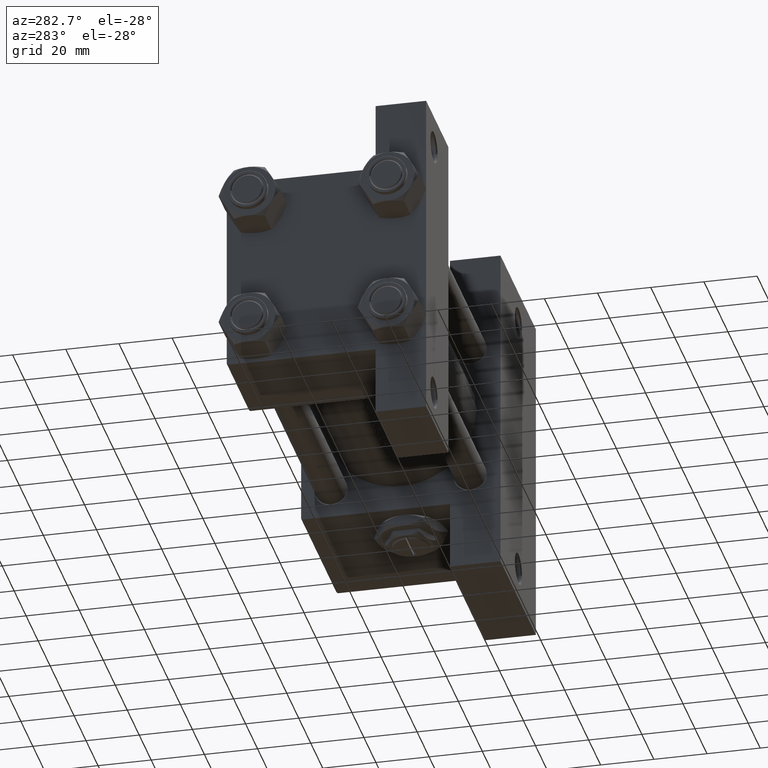
[diagram: clean part render]
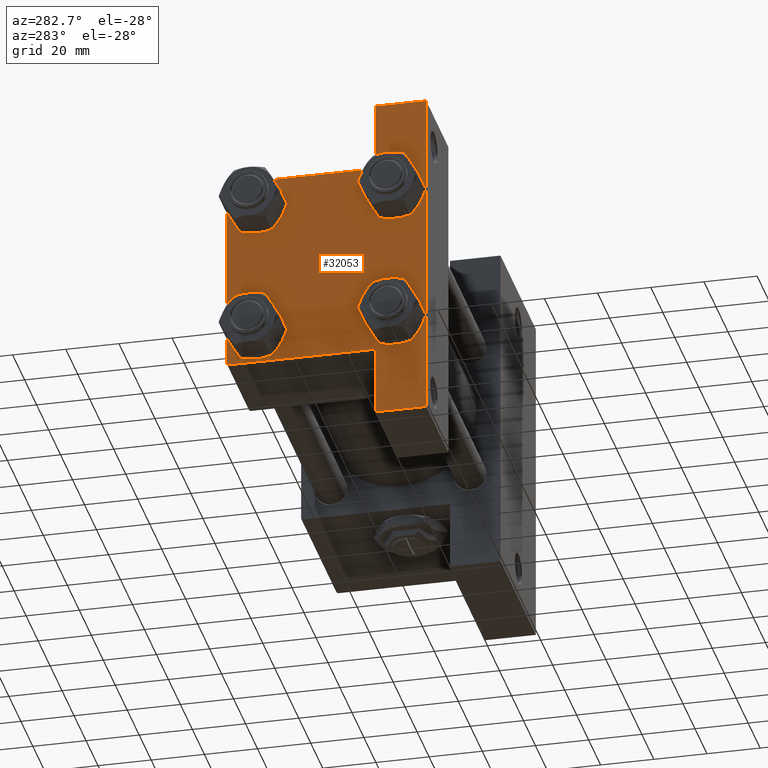
[diagram: same view with one face highlighted and labeled with its STEP entity id]
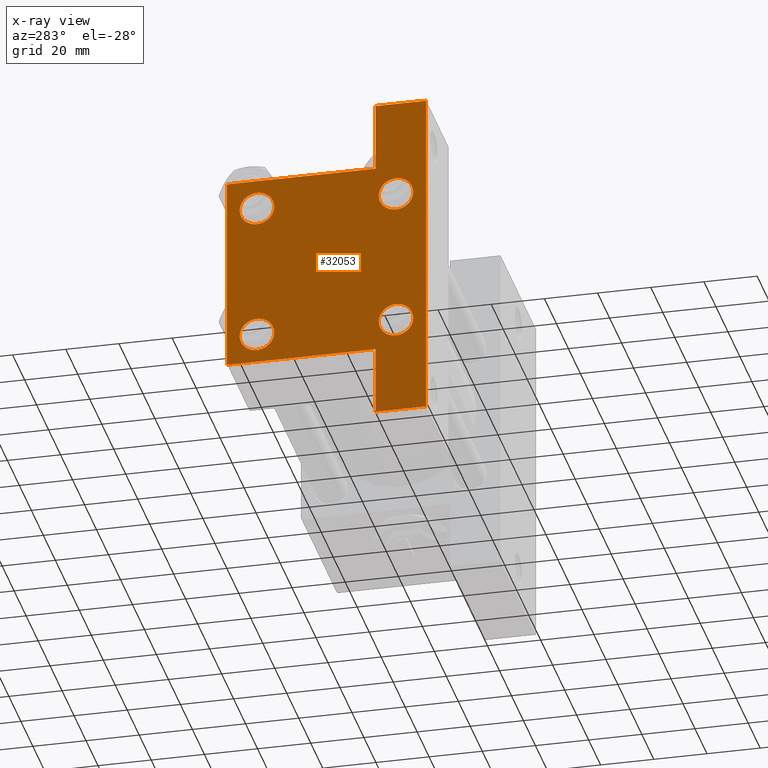
[diagram: x-ray of the same camera — body ghosted, the highlighted face saturated]
A machine part, auxiliary view. The second image highlights one B-rep face of the part: STEP entity #32053.
The next image is the same camera in x-ray: the body ghosted, the highlighted face saturated — about 0% of this face is hidden behind the body in this view.
In plain terms, the highlighted planar face has unit normal (-1, 0, -0).
Its self-contained STEP definition (entity closure, byte-faithful):
#152 = ORIENTED_EDGE ( 'NONE', *, *, #38609, .T. ) ;
#389 = CARTESIAN_POINT ( 'NONE',  ( 0.000000000000000000, -26.14999999999999147, -26.15000000000000924 ) ) ;
#640 = ORIENTED_EDGE ( 'NONE', *, *, #7896, .T. ) ;
#665 = CARTESIAN_POINT ( 'NONE',  ( 0.000000000000000000, 26.14999999999999858, -26.15000000000000213 ) ) ;
#1429 = FACE_BOUND ( 'NONE', #14296, .T. ) ;
#1511 = AXIS2_PLACEMENT_3D ( 'NONE', #16820, #20315, #11653 ) ;
#1976 = EDGE_CURVE ( 'NONE', #10417, #2445, #30505, .T. ) ;
#2445 = VERTEX_POINT ( 'NONE', #30836 ) ;
#2586 = AXIS2_PLACEMENT_3D ( 'NONE', #11253, #8266, #4272 ) ;
#2814 = VECTOR ( 'NONE', #40240, 1000.000000000000000 ) ;
#3331 = EDGE_CURVE ( 'NONE', #4947, #10025, #24158, .T. ) ;
#3492 = EDGE_CURVE ( 'NONE', #41437, #13388, #21844, .T. ) ;
#3693 = CARTESIAN_POINT ( 'NONE',  ( 0.000000000000000000, 26.14999999999999858, 26.15000000000000213 ) ) ;
#4171 = AXIS2_PLACEMENT_3D ( 'NONE', #13157, #5670, #35527 ) ;
#4272 = DIRECTION ( 'NONE',  ( 0.000000000000000000, 0.000000000000000000, 1.000000000000000000 ) ) ;
#4885 = DIRECTION ( 'NONE',  ( 0.000000000000000000, 0.000000000000000000, 1.000000000000000000 ) ) ;
#4947 = VERTEX_POINT ( 'NONE', #31139 ) ;
#5594 = EDGE_CURVE ( 'NONE', #12047, #40768, #19849, .T. ) ;
#5670 = DIRECTION ( 'NONE',  ( 1.000000000000000000, -0.000000000000000000, 0.000000000000000000 ) ) ;
#5702 = VERTEX_POINT ( 'NONE', #13354 ) ;
#5777 = CIRCLE ( 'NONE', #4171, 6.500000000000015987 ) ;
#5914 = FACE_BOUND ( 'NONE', #28785, .T. ) ;
#5968 = EDGE_CURVE ( 'NONE', #25910, #16077, #35525, .T. ) ;
#6085 = EDGE_CURVE ( 'NONE', #5702, #14455, #14128, .T. ) ;
#6280 = LINE ( 'NONE', #40123, #41993 ) ;
#6572 = CIRCLE ( 'NONE', #2586, 6.500000000000023093 ) ;
#6742 = ORIENTED_EDGE ( 'NONE', *, *, #45537, .T. ) ;
#6899 = DIRECTION ( 'NONE',  ( -2.877097866686192789E-16, -1.000000000000000000, 0.000000000000000000 ) ) ;
#7429 = VECTOR ( 'NONE', #20909, 1000.000000000000000 ) ;
#7896 = EDGE_CURVE ( 'NONE', #41928, #19851, #47347, .T. ) ;
#8266 = DIRECTION ( 'NONE',  ( 1.000000000000000000, -0.000000000000000000, 0.000000000000000000 ) ) ;
#8346 = LINE ( 'NONE', #12071, #27017 ) ;
#9648 = EDGE_CURVE ( 'NONE', #23510, #14455, #16316, .T. ) ;
#10024 = ORIENTED_EDGE ( 'NONE', *, *, #29486, .T. ) ;
#10025 = VERTEX_POINT ( 'NONE', #26220 ) ;
#10417 = VERTEX_POINT ( 'NONE', #22424 ) ;
#11253 = CARTESIAN_POINT ( 'NONE',  ( 0.000000000000000000, 26.14999999999999858, 26.15000000000000213 ) ) ;
#11653 = DIRECTION ( 'NONE',  ( 0.000000000000000000, 0.000000000000000000, 1.000000000000000000 ) ) ;
#12047 = VERTEX_POINT ( 'NONE', #21230 ) ;
#12071 = CARTESIAN_POINT ( 'NONE',  ( -0.000000000000000000, -37.25000000000000000, 37.25000000000000000 ) ) ;
#12369 = DIRECTION ( 'NONE',  ( 1.000000000000000000, -0.000000000000000000, 0.000000000000000000 ) ) ;
#12451 = CARTESIAN_POINT ( 'NONE',  ( 0.000000000000000000, -37.50000000000000711, 37.49999999999999289 ) ) ;
#12702 = ORIENTED_EDGE ( 'NONE', *, *, #6085, .F. ) ;
#12884 = FACE_BOUND ( 'NONE', #23228, .T. ) ;
#12927 = AXIS2_PLACEMENT_3D ( 'NONE', #22391, #25645, #45038 ) ;
#13099 = CARTESIAN_POINT ( 'NONE',  ( 3.977209754999744250E-16, -63.49999999999998579, -18.50000000000000355 ) ) ;
#13157 = CARTESIAN_POINT ( 'NONE',  ( 0.000000000000000000, -26.14999999999999147, -26.15000000000000924 ) ) ;
#13354 = CARTESIAN_POINT ( 'NONE',  ( 3.977209754999747208E-16, -63.50000000000000000, -18.50000000000000355 ) ) ;
#13388 = VERTEX_POINT ( 'NONE', #22034 ) ;
#13429 = CARTESIAN_POINT ( 'NONE',  ( 0.000000000000000000, 37.49999999999999289, 37.50000000000000000 ) ) ;
#14128 = LINE ( 'NONE', #25090, #2814 ) ;
#14254 = DIRECTION ( 'NONE',  ( 0.000000000000000000, 0.000000000000000000, -1.000000000000000000 ) ) ;
#14296 = EDGE_LOOP ( 'NONE', ( #49122, #640 ) ) ;
#14312 = ORIENTED_EDGE ( 'NONE', *, *, #1976, .T. ) ;
#14455 = VERTEX_POINT ( 'NONE', #43917 ) ;
#14705 = ORIENTED_EDGE ( 'NONE', *, *, #3331, .F. ) ;
#14867 = EDGE_CURVE ( 'NONE', #12047, #24763, #47531, .T. ) ;
#15026 = CIRCLE ( 'NONE', #1511, 6.500000000000023093 ) ;
#16077 = VERTEX_POINT ( 'NONE', #38256 ) ;
#16316 = LINE ( 'NONE', #24008, #36239 ) ;
#16332 = DIRECTION ( 'NONE',  ( 0.000000000000000000, 0.000000000000000000, 1.000000000000000000 ) ) ;
#16440 = EDGE_CURVE ( 'NONE', #41062, #25008, #45229, .T. ) ;
#16680 = CARTESIAN_POINT ( 'NONE',  ( 1.595073532467135441E-14, 63.50000000000001421, 26.72167621838005047 ) ) ;
#16820 = CARTESIAN_POINT ( 'NONE',  ( 0.000000000000000000, -26.14999999999999147, 26.15000000000000924 ) ) ;
#16927 = AXIS2_PLACEMENT_3D ( 'NONE', #28078, #20617, #17634 ) ;
#17634 = DIRECTION ( 'NONE',  ( -0.000000000000000000, 0.000000000000000000, 1.000000000000000000 ) ) ;
#18746 = CARTESIAN_POINT ( 'NONE',  ( 0.000000000000000000, 26.14999999999999858, -19.64999999999998792 ) ) ;
#18786 = EDGE_CURVE ( 'NONE', #40768, #16077, #6280, .T. ) ;
#19849 = LINE ( 'NONE', #43457, #32977 ) ;
#19851 = VERTEX_POINT ( 'NONE', #18746 ) ;
#20252 = ORIENTED_EDGE ( 'NONE', *, *, #16440, .T. ) ;
#20292 = EDGE_CURVE ( 'NONE', #2445, #10417, #15026, .T. ) ;
#20315 = DIRECTION ( 'NONE',  ( 1.000000000000000000, -0.000000000000000000, 0.000000000000000000 ) ) ;
#20617 = DIRECTION ( 'NONE',  ( -1.000000000000000000, 0.000000000000000000, -0.000000000000000000 ) ) ;
#20909 = DIRECTION ( 'NONE',  ( 0.000000000000000000, -1.734723475976806848E-16, -1.000000000000000000 ) ) ;
#21230 = CARTESIAN_POINT ( 'NONE',  ( 0.000000000000000000, 36.99999999999999289, 37.50000000000000000 ) ) ;
#21490 = CARTESIAN_POINT ( 'NONE',  ( 1.595073532467135441E-14, 63.50000000000000000, -37.50000000000002132 ) ) ;
#21844 = CIRCLE ( 'NONE', #42447, 6.500000000000023093 ) ;
#22034 = CARTESIAN_POINT ( 'NONE',  ( 0.000000000000000000, 26.14999999999999858, 19.64999999999998437 ) ) ;
#22054 = ORIENTED_EDGE ( 'NONE', *, *, #5594, .T. ) ;
#22391 = CARTESIAN_POINT ( 'NONE',  ( 0.000000000000000000, 26.14999999999999858, -26.15000000000000213 ) ) ;
#22424 = CARTESIAN_POINT ( 'NONE',  ( 0.000000000000000000, -26.14999999999999147, 32.65000000000003411 ) ) ;
#23228 = EDGE_LOOP ( 'NONE', ( #43139, #6742 ) ) ;
#23510 = VERTEX_POINT ( 'NONE', #21490 ) ;
#23779 = AXIS2_PLACEMENT_3D ( 'NONE', #389, #42672, #16332 ) ;
#24008 = CARTESIAN_POINT ( 'NONE',  ( 0.000000000000000000, 37.49999999999999289, -37.50000000000000000 ) ) ;
#24158 = LINE ( 'NONE', #12451, #24963 ) ;
#24234 = DIRECTION ( 'NONE',  ( 1.000000000000000000, -0.000000000000000000, 0.000000000000000000 ) ) ;
#24763 = VERTEX_POINT ( 'NONE', #42274 ) ;
#24835 = FACE_BOUND ( 'NONE', #48883, .T. ) ;
#24871 = ORIENTED_EDGE ( 'NONE', *, *, #9648, .T. ) ;
#24963 = VECTOR ( 'NONE', #39306, 1000.000000000000000 ) ;
#24969 = CARTESIAN_POINT ( 'NONE',  ( 0.000000000000000000, -26.14999999999999147, 26.15000000000000924 ) ) ;
#25008 = VERTEX_POINT ( 'NONE', #38975 ) ;
#25090 = CARTESIAN_POINT ( 'NONE',  ( 3.977209754999747208E-16, -63.49999999999998579, 26.72167621838007889 ) ) ;
#25245 = ORIENTED_EDGE ( 'NONE', *, *, #46784, .T. ) ;
#25645 = DIRECTION ( 'NONE',  ( 1.000000000000000000, -0.000000000000000000, 0.000000000000000000 ) ) ;
#25886 = AXIS2_PLACEMENT_3D ( 'NONE', #665, #12369, #4885 ) ;
#25910 = VERTEX_POINT ( 'NONE', #48841 ) ;
#26220 = CARTESIAN_POINT ( 'NONE',  ( -7.145701223179004046E-16, -37.50000000000000711, -18.50000000000000355 ) ) ;
#26529 = AXIS2_PLACEMENT_3D ( 'NONE', #24969, #24234, #40122 ) ;
#27017 = VECTOR ( 'NONE', #30262, 1000.000000000000114 ) ;
#27688 = VECTOR ( 'NONE', #40031, 1000.000000000000000 ) ;
#27748 = ORIENTED_EDGE ( 'NONE', *, *, #18786, .T. ) ;
#28078 = CARTESIAN_POINT ( 'NONE',  ( 0.000000000000000000, 0.000000000000000000, 0.000000000000000000 ) ) ;
#28376 = LINE ( 'NONE', #16680, #7429 ) ;
#28419 = ORIENTED_EDGE ( 'NONE', *, *, #14867, .F. ) ;
#28468 = CARTESIAN_POINT ( 'NONE',  ( 0.000000000000000000, 37.49999999999999289, 37.00000000000000000 ) ) ;
#28785 = EDGE_LOOP ( 'NONE', ( #20252, #10024 ) ) ;
#29299 = EDGE_CURVE ( 'NONE', #19851, #41928, #47110, .T. ) ;
#29486 = EDGE_CURVE ( 'NONE', #25008, #41062, #5777, .T. ) ;
#29811 = EDGE_CURVE ( 'NONE', #10025, #5702, #42449, .T. ) ;
#30262 = DIRECTION ( 'NONE',  ( -0.000000000000000000, 0.7071067811865474617, 0.7071067811865474617 ) ) ;
#30505 = CIRCLE ( 'NONE', #26529, 6.500000000000023093 ) ;
#30836 = CARTESIAN_POINT ( 'NONE',  ( 0.000000000000000000, -26.14999999999999147, 19.64999999999999147 ) ) ;
#31139 = CARTESIAN_POINT ( 'NONE',  ( 0.000000000000000000, -37.50000000000000711, 36.99999999999999289 ) ) ;
#31419 = VECTOR ( 'NONE', #6899, 1000.000000000000000 ) ;
#31759 = DIRECTION ( 'NONE',  ( 0.000000000000000000, 0.7071067811865474617, -0.7071067811865474617 ) ) ;
#32053 = ADVANCED_FACE ( 'NONE', ( #24835, #5914, #1429, #12884, #36493 ), #36256, .T. ) ;
#32132 = CARTESIAN_POINT ( 'NONE',  ( 0.000000000000000000, -26.14999999999999147, -19.64999999999999503 ) ) ;
#32977 = VECTOR ( 'NONE', #31759, 1000.000000000000114 ) ;
#33558 = DIRECTION ( 'NONE',  ( 0.000000000000000000, 0.000000000000000000, 1.000000000000000000 ) ) ;
#33951 = CARTESIAN_POINT ( 'NONE',  ( 0.000000000000000000, 26.14999999999999858, 32.65000000000002700 ) ) ;
#34539 = DIRECTION ( 'NONE',  ( 1.000000000000000000, -0.000000000000000000, 0.000000000000000000 ) ) ;
#35525 = LINE ( 'NONE', #47992, #31419 ) ;
#35527 = DIRECTION ( 'NONE',  ( 0.000000000000000000, 0.000000000000000000, 1.000000000000000000 ) ) ;
#36239 = VECTOR ( 'NONE', #38434, 1000.000000000000000 ) ;
#36256 = PLANE ( 'NONE',  #16927 ) ;
#36493 = FACE_OUTER_BOUND ( 'NONE', #43693, .T. ) ;
#38256 = CARTESIAN_POINT ( 'NONE',  ( 0.000000000000000000, 37.49999999999999289, -18.49999999999999645 ) ) ;
#38434 = DIRECTION ( 'NONE',  ( 0.000000000000000000, -1.000000000000000000, -9.251858538542972814E-17 ) ) ;
#38609 = EDGE_CURVE ( 'NONE', #4947, #24763, #8346, .T. ) ;
#38975 = CARTESIAN_POINT ( 'NONE',  ( 0.000000000000000000, -26.14999999999999147, -32.65000000000002700 ) ) ;
#39091 = CARTESIAN_POINT ( 'NONE',  ( 0.000000000000000000, 26.14999999999999858, -32.65000000000001990 ) ) ;
#39306 = DIRECTION ( 'NONE',  ( 0.000000000000000000, 9.251858538542971581E-17, -1.000000000000000000 ) ) ;
#40031 = DIRECTION ( 'NONE',  ( 0.000000000000000000, -1.000000000000000000, -9.251858538542971581E-17 ) ) ;
#40122 = DIRECTION ( 'NONE',  ( 0.000000000000000000, 0.000000000000000000, 1.000000000000000000 ) ) ;
#40123 = CARTESIAN_POINT ( 'NONE',  ( 0.000000000000000000, 37.49999999999999289, 37.50000000000000000 ) ) ;
#40240 = DIRECTION ( 'NONE',  ( 0.000000000000000000, -1.734723475976806848E-16, -1.000000000000000000 ) ) ;
#40768 = VERTEX_POINT ( 'NONE', #28468 ) ;
#41062 = VERTEX_POINT ( 'NONE', #32132 ) ;
#41437 = VERTEX_POINT ( 'NONE', #33951 ) ;
#41928 = VERTEX_POINT ( 'NONE', #39091 ) ;
#41993 = VECTOR ( 'NONE', #14254, 1000.000000000000000 ) ;
#42112 = ORIENTED_EDGE ( 'NONE', *, *, #5968, .F. ) ;
#42274 = CARTESIAN_POINT ( 'NONE',  ( 0.000000000000000000, -37.00000000000000711, 37.49999999999999289 ) ) ;
#42347 = ORIENTED_EDGE ( 'NONE', *, *, #29811, .F. ) ;
#42447 = AXIS2_PLACEMENT_3D ( 'NONE', #3693, #34539, #33558 ) ;
#42449 = LINE ( 'NONE', #13099, #43976 ) ;
#42672 = DIRECTION ( 'NONE',  ( 1.000000000000000000, -0.000000000000000000, 0.000000000000000000 ) ) ;
#43139 = ORIENTED_EDGE ( 'NONE', *, *, #3492, .T. ) ;
#43457 = CARTESIAN_POINT ( 'NONE',  ( 0.000000000000000000, 37.24999999999999289, 37.24999999999999289 ) ) ;
#43693 = EDGE_LOOP ( 'NONE', ( #14705, #152, #28419, #22054, #27748, #42112, #25245, #24871, #12702, #42347 ) ) ;
#43917 = CARTESIAN_POINT ( 'NONE',  ( 3.977209754999747208E-16, -63.50000000000000000, -37.49999999999999289 ) ) ;
#43976 = VECTOR ( 'NONE', #46942, 1000.000000000000000 ) ;
#44427 = ORIENTED_EDGE ( 'NONE', *, *, #20292, .T. ) ;
#45038 = DIRECTION ( 'NONE',  ( 0.000000000000000000, 0.000000000000000000, 1.000000000000000000 ) ) ;
#45229 = CIRCLE ( 'NONE', #23779, 6.500000000000015987 ) ;
#45537 = EDGE_CURVE ( 'NONE', #13388, #41437, #6572, .T. ) ;
#46784 = EDGE_CURVE ( 'NONE', #25910, #23510, #28376, .T. ) ;
#46942 = DIRECTION ( 'NONE',  ( 4.278042683914906889E-17, -1.000000000000000000, 0.000000000000000000 ) ) ;
#47110 = CIRCLE ( 'NONE', #12927, 6.500000000000015987 ) ;
#47347 = CIRCLE ( 'NONE', #25886, 6.500000000000015987 ) ;
#47531 = LINE ( 'NONE', #13429, #27688 ) ;
#47992 = CARTESIAN_POINT ( 'NONE',  ( 1.595073532467135757E-14, 63.50000000000001421, -18.50000000000000355 ) ) ;
#48841 = CARTESIAN_POINT ( 'NONE',  ( 1.595073532467135441E-14, 63.50000000000000000, -18.50000000000000355 ) ) ;
#48883 = EDGE_LOOP ( 'NONE', ( #14312, #44427 ) ) ;
#49122 = ORIENTED_EDGE ( 'NONE', *, *, #29299, .T. ) ;